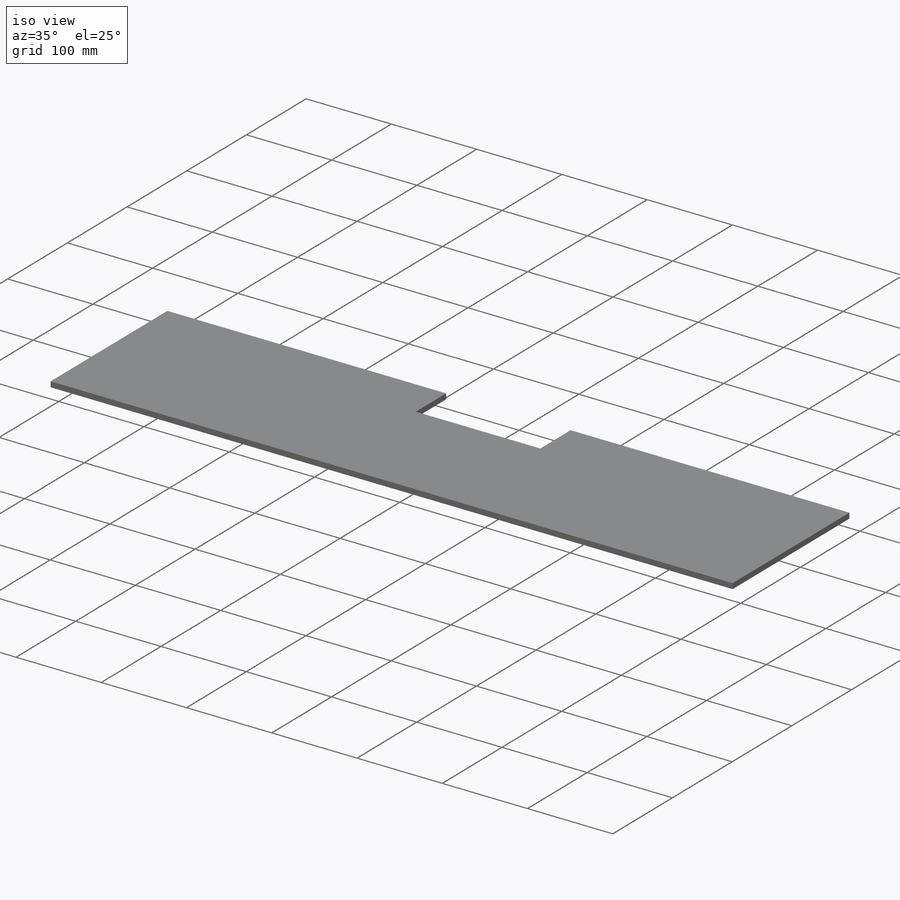
[diagram: iso view]
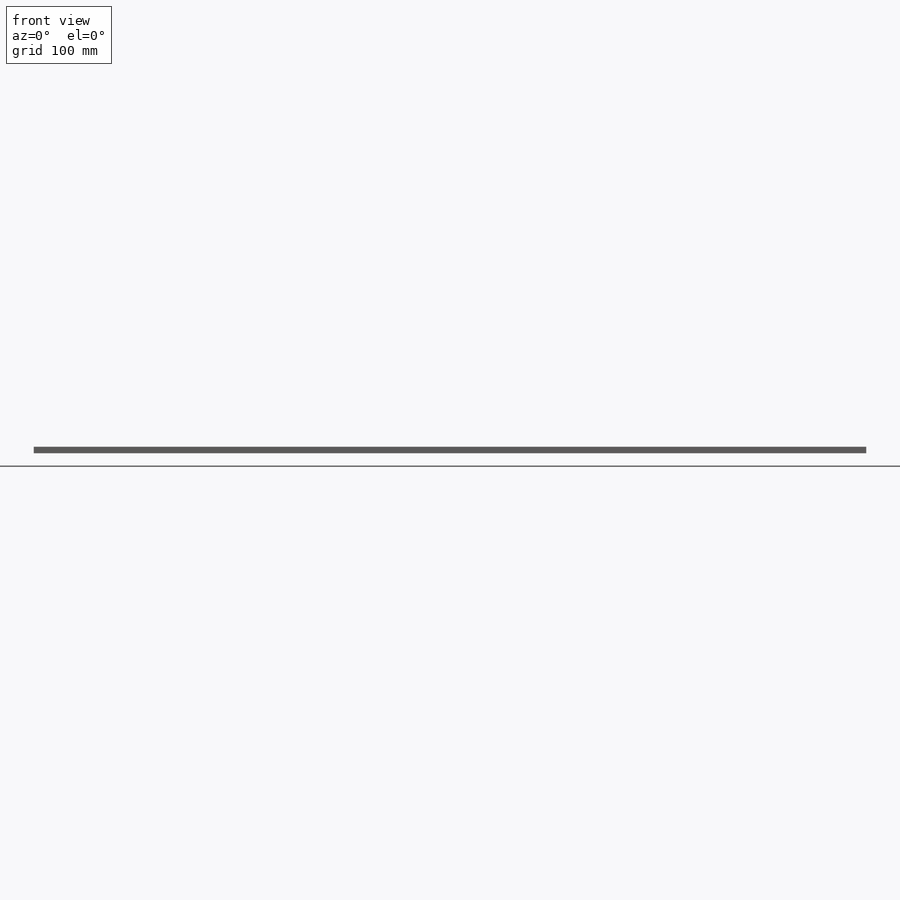
[diagram: front view]
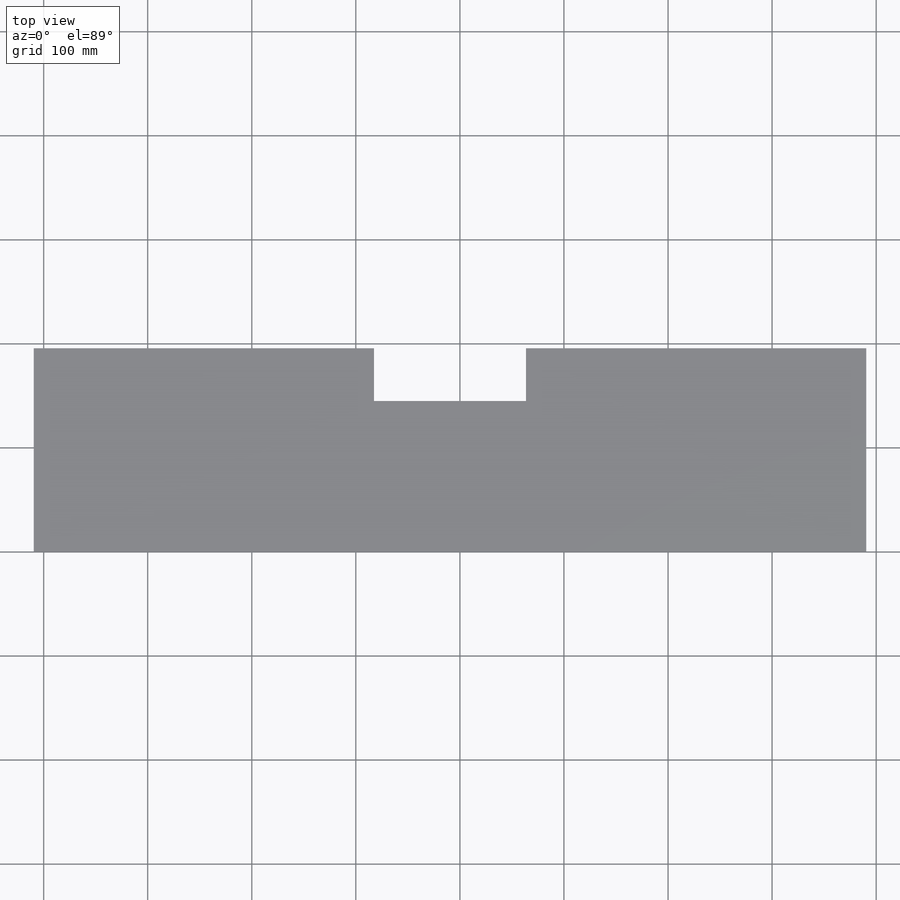
[diagram: top view]
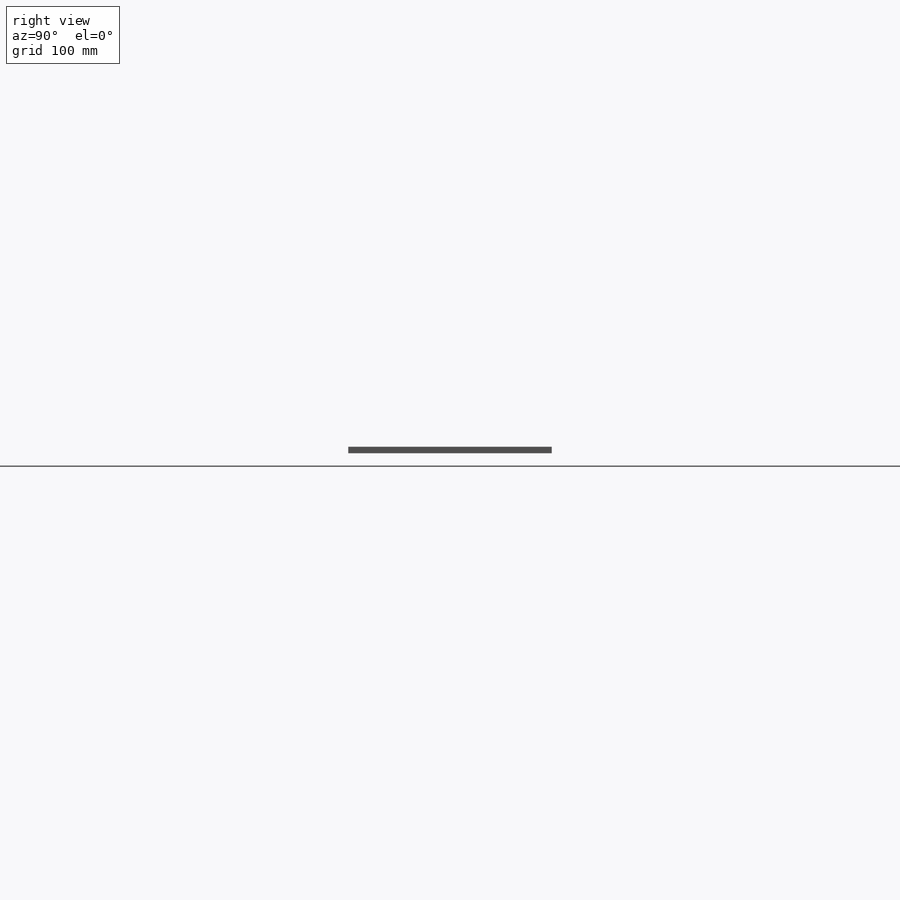
[diagram: right view]
SOLIDWORKS PART (.sldprt)
format: sldprt  version: not decoded by parser v0  size: 181,248 bytes
history: native  units: mm
features: sketch x5, extrude x3, material x1, cut_extrude x1 (+13 scaffold rows collapsed)
feature tree (23):
  scaffold x13  (default folders/planes/origin — collapsed)
  material  "Material <not specified>"
  sketch  "Sketch5"  dims[D1=381.0mm D2=195.58mm]
  extrude  "Boss-Extrude2"  Depth=6.35mm
  sketch  "Sketch6"  dims[D1=195.58mm D2=209.55mm]
  extrude  "Boss-Extrude3"  Depth=6.35mm
  sketch  "Sketch7"  dims[D1=209.55mm D2=195.58mm]
  extrude  "Boss-Extrude4"  Depth=6.35mm
  sketch  "Sketch8"  dims[D1=177.8mm D2=196.85mm]
  sketch  "Sketch9"  dims[D1=50.8mm D2=47.625mm D3=47.625mm]
  cut_extrude  "Cut-Extrude1"  [1 undecoded]
decode coverage: 8 of 9 modeling features carry decoded parameters
note: 1 parameter value undecoded
note: suppression state not decoded; provenance and decode notes live in map.json
